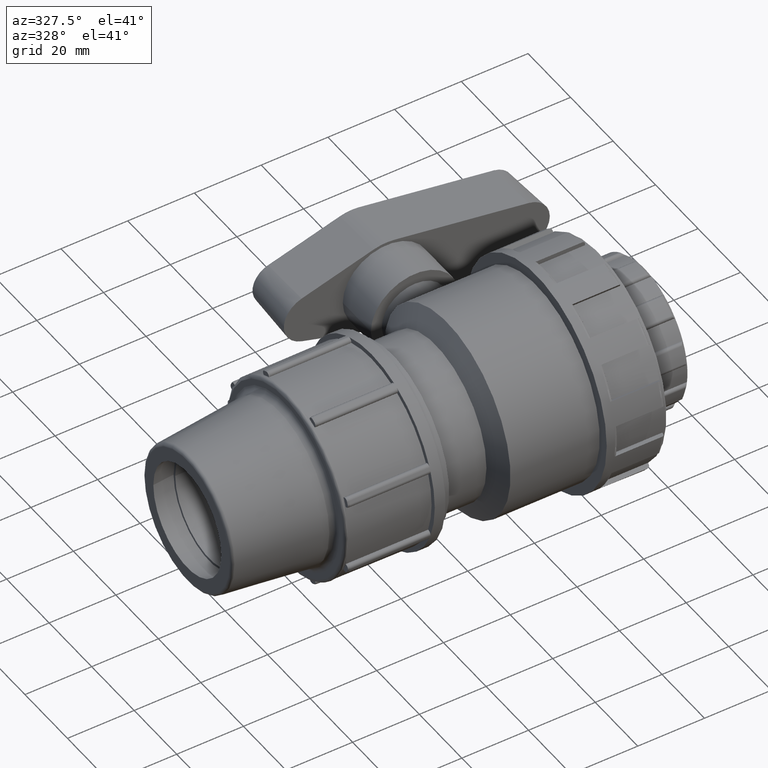
[diagram: clean part render]
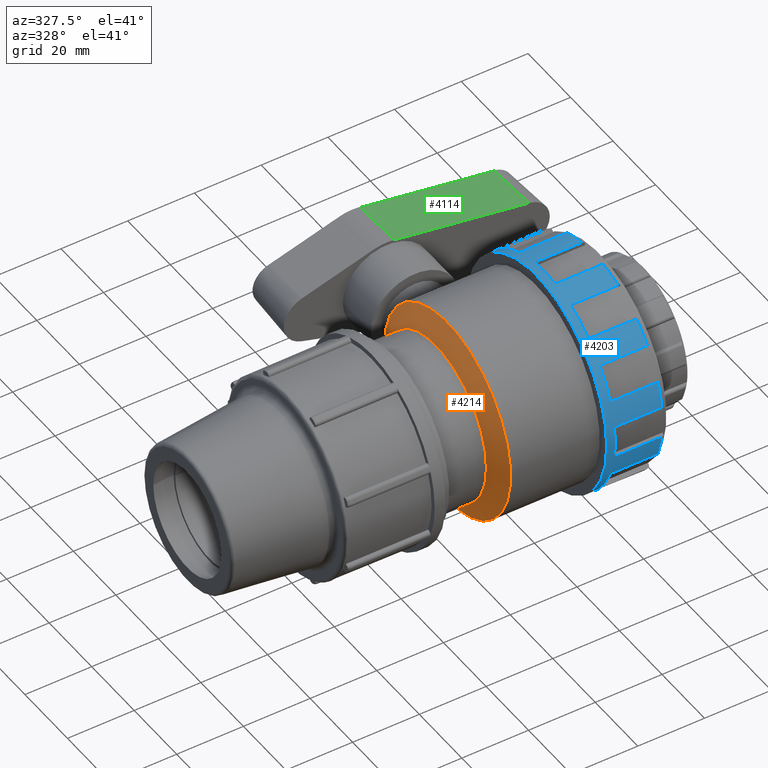
[diagram: same view with three faces highlighted in distinct colors, each labeled with its STEP entity id]
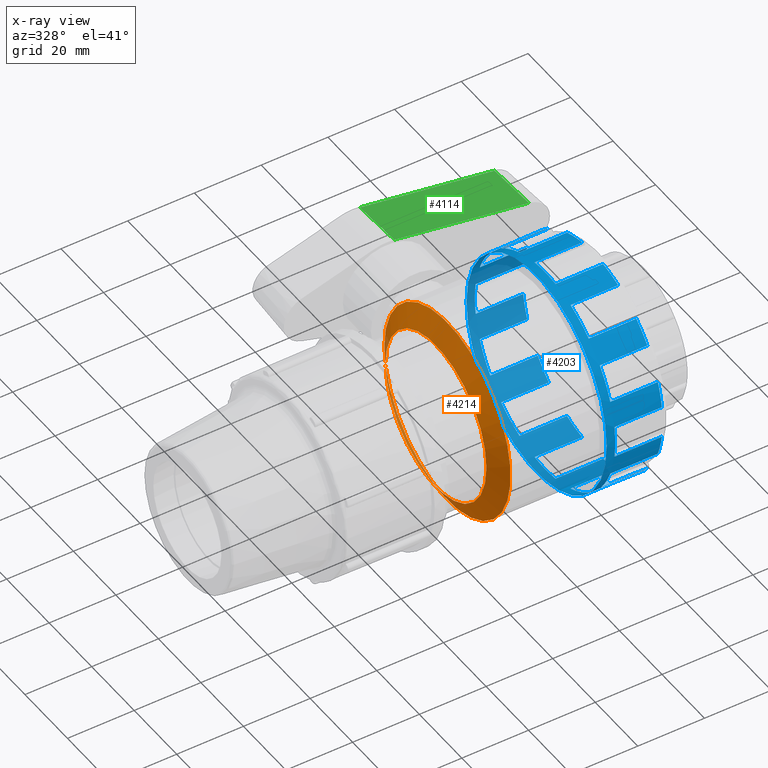
[diagram: x-ray of the same camera — body ghosted, the three highlighted faces saturated]
A machine part, auxiliary view with three faces highlighted in distinct colors.
The next image is the same camera in x-ray (body ghosted, the three faces saturated) — at least one of them is partly hidden behind the body in this view.
Their STEP definitions:

[orange] entity #4214 — the highlighted conical surface has half-angle 60 deg.
#31=CONICAL_SURFACE('',#4706,26.73,60.0000000000001);
#58=FACE_BOUND('',#867,.T.);
#594=FACE_OUTER_BOUND('',#866,.T.);
#866=EDGE_LOOP('',(#3882));
#867=EDGE_LOOP('',(#3883));
#1599=CIRCLE('',#4705,29.7);
#1600=CIRCLE('',#4707,23.76);
#2012=VERTEX_POINT('',#8598);
#2013=VERTEX_POINT('',#8601);
#2639=EDGE_CURVE('',#2012,#2012,#1599,.T.);
#2640=EDGE_CURVE('',#2013,#2013,#1600,.T.);
#3882=ORIENTED_EDGE('',*,*,#2640,.F.);
#3883=ORIENTED_EDGE('',*,*,#2639,.T.);
#4214=ADVANCED_FACE('',(#594,#58),#31,.T.);
#4705=AXIS2_PLACEMENT_3D('',#8599,#5912,#5913);
#4706=AXIS2_PLACEMENT_3D('',#8600,#5914,#5915);
#4707=AXIS2_PLACEMENT_3D('',#8602,#5916,#5917);
#5912=DIRECTION('center_axis',(-1.,0.,0.));
#5913=DIRECTION('ref_axis',(0.,0.,1.));
#5914=DIRECTION('center_axis',(1.,0.,0.));
#5915=DIRECTION('ref_axis',(0.,1.,0.));
#5916=DIRECTION('center_axis',(-1.,0.,0.));
#5917=DIRECTION('ref_axis',(0.,0.,1.));
#8598=CARTESIAN_POINT('',(-13.3666666666667,29.7,0.));
#8599=CARTESIAN_POINT('Origin',(-13.3666666666667,0.,0.));
#8600=CARTESIAN_POINT('Origin',(-15.0813969661598,0.,0.));
#8601=CARTESIAN_POINT('',(-16.796127265653,23.76,0.));
#8602=CARTESIAN_POINT('Origin',(-16.796127265653,0.,0.));

[blue] entity #4203 — the highlighted cylindrical surface (bore or boss wall) has radius 33 mm, axis along (-1, 0, 0).
#50=FACE_BOUND('',#848,.T.);
#583=FACE_OUTER_BOUND('',#847,.T.);
#847=EDGE_LOOP('',(#3714,#3715,#3716,#3717,#3718,#3719,#3720,#3721,#3722,
#3723,#3724,#3725,#3726,#3727,#3728,#3729,#3730,#3731,#3732,#3733,#3734,
#3735,#3736,#3737,#3738,#3739,#3740,#3741,#3742,#3743,#3744,#3745,#3746,
#3747,#3748,#3749,#3750,#3751,#3752,#3753,#3754,#3755,#3756,#3757,#3758,
#3759,#3760,#3761));
#848=EDGE_LOOP('',(#3762));
#1042=LINE('',#8096,#1270);
#1043=LINE('',#8110,#1271);
#1048=LINE('',#8130,#1276);
#1049=LINE('',#8144,#1277);
#1054=LINE('',#8164,#1282);
#1055=LINE('',#8178,#1283);
#1060=LINE('',#8198,#1288);
#1061=LINE('',#8212,#1289);
#1066=LINE('',#8232,#1294);
#1067=LINE('',#8246,#1295);
#1072=LINE('',#8266,#1300);
#1073=LINE('',#8280,#1301);
#1078=LINE('',#8300,#1306);
#1079=LINE('',#8314,#1307);
#1084=LINE('',#8334,#1312);
#1085=LINE('',#8348,#1313);
#1090=LINE('',#8368,#1318);
#1091=LINE('',#8382,#1319);
#1096=LINE('',#8402,#1324);
#1097=LINE('',#8416,#1325);
#1102=LINE('',#8436,#1330);
#1103=LINE('',#8450,#1331);
#1108=LINE('',#8544,#1336);
#1109=LINE('',#8547,#1337);
#1270=VECTOR('',#5640,14.25);
#1271=VECTOR('',#5643,14.25);
#1276=VECTOR('',#5650,14.25);
#1277=VECTOR('',#5653,14.25);
#1282=VECTOR('',#5660,14.25);
#1283=VECTOR('',#5663,14.25);
#1288=VECTOR('',#5670,14.25);
#1289=VECTOR('',#5673,14.25);
#1294=VECTOR('',#5680,14.25);
#1295=VECTOR('',#5683,14.25);
#1300=VECTOR('',#5690,14.25);
#1301=VECTOR('',#5693,14.25);
#1306=VECTOR('',#5700,14.25);
#1307=VECTOR('',#5703,14.25);
#1312=VECTOR('',#5710,14.25);
#1313=VECTOR('',#5713,14.25);
#1318=VECTOR('',#5720,14.25);
#1319=VECTOR('',#5723,14.25);
#1324=VECTOR('',#5730,14.25);
#1325=VECTOR('',#5733,14.25);
#1330=VECTOR('',#5740,14.25);
#1331=VECTOR('',#5743,14.25);
#1336=VECTOR('',#5870,14.25);
#1337=VECTOR('',#5873,14.25);
#1523=CIRCLE('',#4551,33.);
#1526=CIRCLE('',#4556,33.);
#1529=CIRCLE('',#4561,33.);
#1532=CIRCLE('',#4566,33.);
#1535=CIRCLE('',#4571,33.);
#1538=CIRCLE('',#4576,33.);
#1541=CIRCLE('',#4581,33.);
#1544=CIRCLE('',#4586,33.);
#1547=CIRCLE('',#4591,33.);
#1550=CIRCLE('',#4596,33.);
#1553=CIRCLE('',#4601,33.);
#1579=CIRCLE('',#4663,33.);
#1580=CIRCLE('',#4665,33.);
#1581=CIRCLE('',#4667,33.);
#1582=CIRCLE('',#4669,33.);
#1583=CIRCLE('',#4671,33.);
#1584=CIRCLE('',#4673,33.);
#1585=CIRCLE('',#4675,33.);
#1586=CIRCLE('',#4677,33.);
#1587=CIRCLE('',#4679,33.);
#1588=CIRCLE('',#4681,33.);
#1589=CIRCLE('',#4683,33.);
#1590=CIRCLE('',#4685,33.);
#1591=CIRCLE('',#4687,33.);
#1592=CIRCLE('',#4688,33.);
#1863=VERTEX_POINT('',#7718);
#1866=VERTEX_POINT('',#7732);
#1869=VERTEX_POINT('',#7751);
#1872=VERTEX_POINT('',#7765);
#1875=VERTEX_POINT('',#7784);
#1878=VERTEX_POINT('',#7798);
#1881=VERTEX_POINT('',#7817);
#1884=VERTEX_POINT('',#7831);
#1887=VERTEX_POINT('',#7850);
#1890=VERTEX_POINT('',#7864);
#1893=VERTEX_POINT('',#7883);
#1896=VERTEX_POINT('',#7897);
#1899=VERTEX_POINT('',#7916);
#1902=VERTEX_POINT('',#7930);
#1905=VERTEX_POINT('',#7949);
#1908=VERTEX_POINT('',#7963);
#1911=VERTEX_POINT('',#7982);
#1914=VERTEX_POINT('',#7996);
#1917=VERTEX_POINT('',#8015);
#1920=VERTEX_POINT('',#8029);
#1923=VERTEX_POINT('',#8048);
#1926=VERTEX_POINT('',#8062);
#1930=VERTEX_POINT('',#8082);
#1932=VERTEX_POINT('',#8098);
#1936=VERTEX_POINT('',#8116);
#1938=VERTEX_POINT('',#8132);
#1942=VERTEX_POINT('',#8150);
#1944=VERTEX_POINT('',#8166);
#1948=VERTEX_POINT('',#8184);
#1950=VERTEX_POINT('',#8200);
#1954=VERTEX_POINT('',#8218);
#1956=VERTEX_POINT('',#8234);
#1960=VERTEX_POINT('',#8252);
#1962=VERTEX_POINT('',#8268);
#1966=VERTEX_POINT('',#8286);
#1968=VERTEX_POINT('',#8302);
#1972=VERTEX_POINT('',#8320);
#1974=VERTEX_POINT('',#8336);
#1978=VERTEX_POINT('',#8354);
#1980=VERTEX_POINT('',#8370);
#1984=VERTEX_POINT('',#8388);
#1986=VERTEX_POINT('',#8404);
#1990=VERTEX_POINT('',#8422);
#1992=VERTEX_POINT('',#8438);
#1999=VERTEX_POINT('',#8497);
#2000=VERTEX_POINT('',#8528);
#2001=VERTEX_POINT('',#8543);
#2002=VERTEX_POINT('',#8545);
#2003=VERTEX_POINT('',#8548);
#2421=EDGE_CURVE('',#1866,#1863,#1523,.T.);
#2428=EDGE_CURVE('',#1872,#1869,#1526,.T.);
#2435=EDGE_CURVE('',#1878,#1875,#1529,.T.);
#2442=EDGE_CURVE('',#1884,#1881,#1532,.T.);
#2449=EDGE_CURVE('',#1890,#1887,#1535,.T.);
#2456=EDGE_CURVE('',#1896,#1893,#1538,.T.);
#2463=EDGE_CURVE('',#1902,#1899,#1541,.T.);
#2470=EDGE_CURVE('',#1908,#1905,#1544,.T.);
#2477=EDGE_CURVE('',#1914,#1911,#1547,.T.);
#2484=EDGE_CURVE('',#1920,#1917,#1550,.T.);
#2491=EDGE_CURVE('',#1926,#1923,#1553,.T.);
#2498=EDGE_CURVE('',#1930,#1863,#1042,.T.);
#2500=EDGE_CURVE('',#1866,#1932,#1043,.T.);
#2506=EDGE_CURVE('',#1936,#1869,#1048,.T.);
#2508=EDGE_CURVE('',#1872,#1938,#1049,.T.);
#2514=EDGE_CURVE('',#1942,#1875,#1054,.T.);
#2516=EDGE_CURVE('',#1878,#1944,#1055,.T.);
#2522=EDGE_CURVE('',#1948,#1881,#1060,.T.);
#2524=EDGE_CURVE('',#1884,#1950,#1061,.T.);
#2530=EDGE_CURVE('',#1954,#1887,#1066,.T.);
#2532=EDGE_CURVE('',#1890,#1956,#1067,.T.);
#2538=EDGE_CURVE('',#1960,#1893,#1072,.T.);
#2540=EDGE_CURVE('',#1896,#1962,#1073,.T.);
#2546=EDGE_CURVE('',#1966,#1899,#1078,.T.);
#2548=EDGE_CURVE('',#1902,#1968,#1079,.T.);
#2554=EDGE_CURVE('',#1972,#1905,#1084,.T.);
#2556=EDGE_CURVE('',#1908,#1974,#1085,.T.);
#2562=EDGE_CURVE('',#1978,#1911,#1090,.T.);
#2564=EDGE_CURVE('',#1914,#1980,#1091,.T.);
#2570=EDGE_CURVE('',#1984,#1917,#1096,.T.);
#2572=EDGE_CURVE('',#1920,#1986,#1097,.T.);
#2578=EDGE_CURVE('',#1990,#1923,#1102,.T.);
#2580=EDGE_CURVE('',#1926,#1992,#1103,.T.);
#2609=EDGE_CURVE('',#1990,#1999,#1579,.T.);
#2611=EDGE_CURVE('',#1984,#1992,#1580,.T.);
#2612=EDGE_CURVE('',#1978,#1986,#1581,.T.);
#2613=EDGE_CURVE('',#1972,#1980,#1582,.T.);
#2614=EDGE_CURVE('',#1966,#1974,#1583,.T.);
#2615=EDGE_CURVE('',#1960,#1968,#1584,.T.);
#2616=EDGE_CURVE('',#1954,#1962,#1585,.T.);
#2617=EDGE_CURVE('',#1948,#1956,#1586,.T.);
#2618=EDGE_CURVE('',#1942,#1950,#1587,.T.);
#2619=EDGE_CURVE('',#1936,#1944,#1588,.T.);
#2621=EDGE_CURVE('',#2000,#1932,#1589,.T.);
#2622=EDGE_CURVE('',#1930,#1938,#1590,.T.);
#2623=EDGE_CURVE('',#2000,#2001,#1108,.T.);
#2624=EDGE_CURVE('',#2002,#2001,#1591,.T.);
#2625=EDGE_CURVE('',#2002,#1999,#1109,.T.);
#2626=EDGE_CURVE('',#2003,#2003,#1592,.T.);
#3714=ORIENTED_EDGE('',*,*,#2500,.T.);
#3715=ORIENTED_EDGE('',*,*,#2621,.F.);
#3716=ORIENTED_EDGE('',*,*,#2623,.T.);
#3717=ORIENTED_EDGE('',*,*,#2624,.F.);
#3718=ORIENTED_EDGE('',*,*,#2625,.T.);
#3719=ORIENTED_EDGE('',*,*,#2609,.F.);
#3720=ORIENTED_EDGE('',*,*,#2578,.T.);
#3721=ORIENTED_EDGE('',*,*,#2491,.F.);
#3722=ORIENTED_EDGE('',*,*,#2580,.T.);
#3723=ORIENTED_EDGE('',*,*,#2611,.F.);
#3724=ORIENTED_EDGE('',*,*,#2570,.T.);
#3725=ORIENTED_EDGE('',*,*,#2484,.F.);
#3726=ORIENTED_EDGE('',*,*,#2572,.T.);
#3727=ORIENTED_EDGE('',*,*,#2612,.F.);
#3728=ORIENTED_EDGE('',*,*,#2562,.T.);
#3729=ORIENTED_EDGE('',*,*,#2477,.F.);
#3730=ORIENTED_EDGE('',*,*,#2564,.T.);
#3731=ORIENTED_EDGE('',*,*,#2613,.F.);
#3732=ORIENTED_EDGE('',*,*,#2554,.T.);
#3733=ORIENTED_EDGE('',*,*,#2470,.F.);
#3734=ORIENTED_EDGE('',*,*,#2556,.T.);
#3735=ORIENTED_EDGE('',*,*,#2614,.F.);
#3736=ORIENTED_EDGE('',*,*,#2546,.T.);
#3737=ORIENTED_EDGE('',*,*,#2463,.F.);
#3738=ORIENTED_EDGE('',*,*,#2548,.T.);
#3739=ORIENTED_EDGE('',*,*,#2615,.F.);
#3740=ORIENTED_EDGE('',*,*,#2538,.T.);
#3741=ORIENTED_EDGE('',*,*,#2456,.F.);
#3742=ORIENTED_EDGE('',*,*,#2540,.T.);
#3743=ORIENTED_EDGE('',*,*,#2616,.F.);
#3744=ORIENTED_EDGE('',*,*,#2530,.T.);
#3745=ORIENTED_EDGE('',*,*,#2449,.F.);
#3746=ORIENTED_EDGE('',*,*,#2532,.T.);
#3747=ORIENTED_EDGE('',*,*,#2617,.F.);
#3748=ORIENTED_EDGE('',*,*,#2522,.T.);
#3749=ORIENTED_EDGE('',*,*,#2442,.F.);
#3750=ORIENTED_EDGE('',*,*,#2524,.T.);
#3751=ORIENTED_EDGE('',*,*,#2618,.F.);
#3752=ORIENTED_EDGE('',*,*,#2514,.T.);
#3753=ORIENTED_EDGE('',*,*,#2435,.F.);
#3754=ORIENTED_EDGE('',*,*,#2516,.T.);
#3755=ORIENTED_EDGE('',*,*,#2619,.F.);
#3756=ORIENTED_EDGE('',*,*,#2506,.T.);
#3757=ORIENTED_EDGE('',*,*,#2428,.F.);
#3758=ORIENTED_EDGE('',*,*,#2508,.T.);
#3759=ORIENTED_EDGE('',*,*,#2622,.F.);
#3760=ORIENTED_EDGE('',*,*,#2498,.T.);
#3761=ORIENTED_EDGE('',*,*,#2421,.F.);
#3762=ORIENTED_EDGE('',*,*,#2626,.F.);
#3969=CYLINDRICAL_SURFACE('',#4686,33.);
#4203=ADVANCED_FACE('',(#583,#50),#3969,.T.);
#4551=AXIS2_PLACEMENT_3D('',#7743,#5508,#5509);
#4556=AXIS2_PLACEMENT_3D('',#7776,#5520,#5521);
#4561=AXIS2_PLACEMENT_3D('',#7809,#5532,#5533);
#4566=AXIS2_PLACEMENT_3D('',#7842,#5544,#5545);
#4571=AXIS2_PLACEMENT_3D('',#7875,#5556,#5557);
#4576=AXIS2_PLACEMENT_3D('',#7908,#5568,#5569);
#4581=AXIS2_PLACEMENT_3D('',#7941,#5580,#5581);
#4586=AXIS2_PLACEMENT_3D('',#7974,#5592,#5593);
#4591=AXIS2_PLACEMENT_3D('',#8007,#5604,#5605);
#4596=AXIS2_PLACEMENT_3D('',#8040,#5616,#5617);
#4601=AXIS2_PLACEMENT_3D('',#8073,#5628,#5629);
#4663=AXIS2_PLACEMENT_3D('',#8498,#5822,#5823);
#4665=AXIS2_PLACEMENT_3D('',#8510,#5826,#5827);
#4667=AXIS2_PLACEMENT_3D('',#8512,#5830,#5831);
#4669=AXIS2_PLACEMENT_3D('',#8514,#5834,#5835);
#4671=AXIS2_PLACEMENT_3D('',#8516,#5838,#5839);
#4673=AXIS2_PLACEMENT_3D('',#8518,#5842,#5843);
#4675=AXIS2_PLACEMENT_3D('',#8520,#5846,#5847);
#4677=AXIS2_PLACEMENT_3D('',#8522,#5850,#5851);
#4679=AXIS2_PLACEMENT_3D('',#8524,#5854,#5855);
#4681=AXIS2_PLACEMENT_3D('',#8526,#5858,#5859);
#4683=AXIS2_PLACEMENT_3D('',#8539,#5862,#5863);
#4685=AXIS2_PLACEMENT_3D('',#8541,#5866,#5867);
#4686=AXIS2_PLACEMENT_3D('',#8542,#5868,#5869);
#4687=AXIS2_PLACEMENT_3D('',#8546,#5871,#5872);
#4688=AXIS2_PLACEMENT_3D('',#8549,#5874,#5875);
#5508=DIRECTION('center_axis',(1.,0.,0.));
#5509=DIRECTION('ref_axis',(0.,-0.866025403784438,-0.5));
#5520=DIRECTION('center_axis',(1.,0.,0.));
#5521=DIRECTION('ref_axis',(0.,-0.499999999999999,-0.866025403784439));
#5532=DIRECTION('center_axis',(1.,0.,0.));
#5533=DIRECTION('ref_axis',(0.,2.83276944882399E-16,-1.));
#5544=DIRECTION('center_axis',(1.,0.,0.));
#5545=DIRECTION('ref_axis',(0.,0.500000000000001,-0.866025403784438));
#5556=DIRECTION('center_axis',(1.,0.,0.));
#5557=DIRECTION('ref_axis',(0.,0.866025403784439,-0.5));
#5568=DIRECTION('center_axis',(1.,0.,0.));
#5569=DIRECTION('ref_axis',(0.,1.,1.38777878078145E-16));
#5580=DIRECTION('center_axis',(1.,0.,0.));
#5581=DIRECTION('ref_axis',(0.,0.866025403784438,0.5));
#5592=DIRECTION('center_axis',(1.,0.,0.));
#5593=DIRECTION('ref_axis',(0.,0.5,0.866025403784439));
#5604=DIRECTION('center_axis',(1.,0.,0.));
#5605=DIRECTION('ref_axis',(0.,6.12323399573677E-17,1.));
#5616=DIRECTION('center_axis',(1.,0.,0.));
#5617=DIRECTION('ref_axis',(0.,-0.5,0.866025403784438));
#5628=DIRECTION('center_axis',(1.,0.,0.));
#5629=DIRECTION('ref_axis',(0.,-0.866025403784439,0.5));
#5640=DIRECTION('',(-1.,0.,0.));
#5643=DIRECTION('',(1.,0.,0.));
#5650=DIRECTION('',(-1.,0.,0.));
#5653=DIRECTION('',(1.,0.,0.));
#5660=DIRECTION('',(-1.,0.,0.));
#5663=DIRECTION('',(1.,0.,0.));
#5670=DIRECTION('',(-1.,0.,0.));
#5673=DIRECTION('',(1.,0.,0.));
#5680=DIRECTION('',(-1.,0.,0.));
#5683=DIRECTION('',(1.,0.,0.));
#5690=DIRECTION('',(-1.,0.,0.));
#5693=DIRECTION('',(1.,0.,0.));
#5700=DIRECTION('',(-1.,0.,0.));
#5703=DIRECTION('',(1.,0.,0.));
#5710=DIRECTION('',(-1.,0.,0.));
#5713=DIRECTION('',(1.,0.,0.));
#5720=DIRECTION('',(-1.,0.,0.));
#5723=DIRECTION('',(1.,0.,0.));
#5730=DIRECTION('',(-1.,0.,0.));
#5733=DIRECTION('',(1.,0.,0.));
#5740=DIRECTION('',(-1.,0.,0.));
#5743=DIRECTION('',(1.,0.,0.));
#5822=DIRECTION('center_axis',(1.,0.,0.));
#5823=DIRECTION('ref_axis',(0.,-1.,-1.83697019872103E-16));
#5826=DIRECTION('center_axis',(1.,0.,0.));
#5827=DIRECTION('ref_axis',(0.,-1.,-1.83697019872103E-16));
#5830=DIRECTION('center_axis',(1.,0.,0.));
#5831=DIRECTION('ref_axis',(0.,-1.,-1.83697019872103E-16));
#5834=DIRECTION('center_axis',(1.,0.,0.));
#5835=DIRECTION('ref_axis',(0.,-1.,-1.83697019872103E-16));
#5838=DIRECTION('center_axis',(1.,0.,0.));
#5839=DIRECTION('ref_axis',(0.,-1.,-1.83697019872103E-16));
#5842=DIRECTION('center_axis',(1.,0.,0.));
#5843=DIRECTION('ref_axis',(0.,-1.,-1.83697019872103E-16));
#5846=DIRECTION('center_axis',(1.,0.,0.));
#5847=DIRECTION('ref_axis',(0.,-1.,-1.83697019872103E-16));
#5850=DIRECTION('center_axis',(1.,0.,0.));
#5851=DIRECTION('ref_axis',(0.,-1.,-1.83697019872103E-16));
#5854=DIRECTION('center_axis',(1.,0.,0.));
#5855=DIRECTION('ref_axis',(0.,-1.,-1.83697019872103E-16));
#5858=DIRECTION('center_axis',(1.,0.,0.));
#5859=DIRECTION('ref_axis',(0.,-1.,-1.83697019872103E-16));
#5862=DIRECTION('center_axis',(1.,0.,0.));
#5863=DIRECTION('ref_axis',(0.,-1.,-1.83697019872103E-16));
#5866=DIRECTION('center_axis',(1.,0.,0.));
#5867=DIRECTION('ref_axis',(0.,-1.,-1.83697019872103E-16));
#5868=DIRECTION('center_axis',(-1.,0.,0.));
#5869=DIRECTION('ref_axis',(0.,1.,0.));
#5870=DIRECTION('',(-1.,0.,0.));
#5871=DIRECTION('center_axis',(1.,0.,0.));
#5872=DIRECTION('ref_axis',(0.,-1.,-1.22464679914735E-16));
#5873=DIRECTION('',(1.,0.,0.));
#5874=DIRECTION('center_axis',(-1.,0.,0.));
#5875=DIRECTION('ref_axis',(0.,0.,1.));
#7718=CARTESIAN_POINT('',(15.8879366666667,-25.7804972527471,-20.6001446936933));
#7732=CARTESIAN_POINT('',(15.8879366666667,-30.7304972527471,-12.0264931962273));
#7743=CARTESIAN_POINT('Origin',(15.8879366666667,0.,0.));
#7751=CARTESIAN_POINT('',(15.8879366666667,-12.0264931962273,-30.7304972527471));
#7765=CARTESIAN_POINT('',(15.8879366666667,-20.6001446936932,-25.7804972527471));
#7776=CARTESIAN_POINT('Origin',(15.8879366666667,0.,0.));
#7784=CARTESIAN_POINT('',(15.8879366666667,4.95000000000001,-32.6266378899206));
#7798=CARTESIAN_POINT('',(15.8879366666667,-4.94999999999999,-32.6266378899206));
#7809=CARTESIAN_POINT('Origin',(15.8879366666667,0.,0.));
#7817=CARTESIAN_POINT('',(15.8879366666667,20.6001446936933,-25.7804972527471));
#7831=CARTESIAN_POINT('',(15.8879366666667,12.0264931962273,-30.7304972527471));
#7842=CARTESIAN_POINT('Origin',(15.8879366666667,0.,0.));
#7850=CARTESIAN_POINT('',(15.8879366666667,30.7304972527471,-12.0264931962273));
#7864=CARTESIAN_POINT('',(15.8879366666667,25.7804972527471,-20.6001446936932));
#7875=CARTESIAN_POINT('Origin',(15.8879366666667,0.,0.));
#7883=CARTESIAN_POINT('',(15.8879366666667,32.6266378899206,4.95000000000001));
#7897=CARTESIAN_POINT('',(15.8879366666667,32.6266378899206,-4.94999999999999));
#7908=CARTESIAN_POINT('Origin',(15.8879366666667,0.,0.));
#7916=CARTESIAN_POINT('',(15.8879366666667,25.7804972527471,20.6001446936933));
#7930=CARTESIAN_POINT('',(15.8879366666667,30.7304972527471,12.0264931962273));
#7941=CARTESIAN_POINT('Origin',(15.8879366666667,0.,0.));
#7949=CARTESIAN_POINT('',(15.8879366666667,12.0264931962273,30.7304972527471));
#7963=CARTESIAN_POINT('',(15.8879366666667,20.6001446936932,25.7804972527471));
#7974=CARTESIAN_POINT('Origin',(15.8879366666667,0.,0.));
#7982=CARTESIAN_POINT('',(15.8879366666667,-4.95,32.6266378899206));
#7996=CARTESIAN_POINT('',(15.8879366666667,4.95,32.6266378899206));
#8007=CARTESIAN_POINT('Origin',(15.8879366666667,0.,0.));
#8015=CARTESIAN_POINT('',(15.8879366666667,-20.6001446936933,25.7804972527471));
#8029=CARTESIAN_POINT('',(15.8879366666667,-12.0264931962273,30.7304972527471));
#8040=CARTESIAN_POINT('Origin',(15.8879366666667,0.,0.));
#8048=CARTESIAN_POINT('',(15.8879366666667,-30.7304972527471,12.0264931962273));
#8062=CARTESIAN_POINT('',(15.8879366666667,-25.7804972527471,20.6001446936932));
#8073=CARTESIAN_POINT('Origin',(15.8879366666667,0.,0.));
#8082=CARTESIAN_POINT('',(30.1379366666667,-25.7804972527471,-20.6001446936933));
#8096=CARTESIAN_POINT('',(22.2066666666667,-25.7804972527471,-20.6001446936933));
#8098=CARTESIAN_POINT('',(30.1379366666667,-30.7304972527471,-12.0264931962273));
#8110=CARTESIAN_POINT('',(22.2066666666667,-30.7304972527471,-12.0264931962273));
#8116=CARTESIAN_POINT('',(30.1379366666667,-12.0264931962273,-30.7304972527471));
#8130=CARTESIAN_POINT('',(22.2066666666667,-12.0264931962273,-30.7304972527471));
#8132=CARTESIAN_POINT('',(30.1379366666667,-20.6001446936932,-25.7804972527471));
#8144=CARTESIAN_POINT('',(22.2066666666667,-20.6001446936932,-25.7804972527471));
#8150=CARTESIAN_POINT('',(30.1379366666667,4.95000000000001,-32.6266378899206));
#8164=CARTESIAN_POINT('',(22.2066666666667,4.95000000000001,-32.6266378899206));
#8166=CARTESIAN_POINT('',(30.1379366666667,-4.94999999999999,-32.6266378899206));
#8178=CARTESIAN_POINT('',(22.2066666666667,-4.94999999999999,-32.6266378899206));
#8184=CARTESIAN_POINT('',(30.1379366666667,20.6001446936933,-25.7804972527471));
#8198=CARTESIAN_POINT('',(22.2066666666667,20.6001446936933,-25.7804972527471));
#8200=CARTESIAN_POINT('',(30.1379366666667,12.0264931962273,-30.7304972527471));
#8212=CARTESIAN_POINT('',(22.2066666666667,12.0264931962273,-30.7304972527471));
#8218=CARTESIAN_POINT('',(30.1379366666667,30.7304972527471,-12.0264931962273));
#8232=CARTESIAN_POINT('',(22.2066666666667,30.7304972527471,-12.0264931962273));
#8234=CARTESIAN_POINT('',(30.1379366666667,25.7804972527471,-20.6001446936932));
#8246=CARTESIAN_POINT('',(22.2066666666667,25.7804972527471,-20.6001446936932));
#8252=CARTESIAN_POINT('',(30.1379366666667,32.6266378899206,4.95000000000001));
#8266=CARTESIAN_POINT('',(22.2066666666667,32.6266378899206,4.95000000000001));
#8268=CARTESIAN_POINT('',(30.1379366666667,32.6266378899206,-4.94999999999999));
#8280=CARTESIAN_POINT('',(22.2066666666667,32.6266378899206,-4.94999999999999));
#8286=CARTESIAN_POINT('',(30.1379366666667,25.7804972527471,20.6001446936933));
#8300=CARTESIAN_POINT('',(22.2066666666667,25.7804972527471,20.6001446936933));
#8302=CARTESIAN_POINT('',(30.1379366666667,30.7304972527471,12.0264931962273));
#8314=CARTESIAN_POINT('',(22.2066666666667,30.7304972527471,12.0264931962273));
#8320=CARTESIAN_POINT('',(30.1379366666667,12.0264931962273,30.7304972527471));
#8334=CARTESIAN_POINT('',(22.2066666666667,12.0264931962273,30.7304972527471));
#8336=CARTESIAN_POINT('',(30.1379366666667,20.6001446936932,25.7804972527471));
#8348=CARTESIAN_POINT('',(22.2066666666667,20.6001446936932,25.7804972527471));
#8354=CARTESIAN_POINT('',(30.1379366666667,-4.95,32.6266378899206));
#8368=CARTESIAN_POINT('',(22.2066666666667,-4.95,32.6266378899206));
#8370=CARTESIAN_POINT('',(30.1379366666667,4.95,32.6266378899206));
#8382=CARTESIAN_POINT('',(22.2066666666667,4.95,32.6266378899206));
#8388=CARTESIAN_POINT('',(30.1379366666667,-20.6001446936933,25.7804972527471));
#8402=CARTESIAN_POINT('',(22.2066666666667,-20.6001446936933,25.7804972527471));
#8404=CARTESIAN_POINT('',(30.1379366666667,-12.0264931962273,30.7304972527471));
#8416=CARTESIAN_POINT('',(22.2066666666667,-12.0264931962273,30.7304972527471));
#8422=CARTESIAN_POINT('',(30.1379366666667,-30.7304972527471,12.0264931962273));
#8436=CARTESIAN_POINT('',(22.2066666666667,-30.7304972527471,12.0264931962273));
#8438=CARTESIAN_POINT('',(30.1379366666667,-25.7804972527471,20.6001446936932));
#8450=CARTESIAN_POINT('',(22.2066666666667,-25.7804972527471,20.6001446936932));
#8497=CARTESIAN_POINT('',(30.1379366666667,-32.6266378899206,4.95));
#8498=CARTESIAN_POINT('Origin',(30.1379366666667,0.,0.));
#8510=CARTESIAN_POINT('Origin',(30.1379366666667,0.,0.));
#8512=CARTESIAN_POINT('Origin',(30.1379366666667,0.,0.));
#8514=CARTESIAN_POINT('Origin',(30.1379366666667,0.,0.));
#8516=CARTESIAN_POINT('Origin',(30.1379366666667,0.,0.));
#8518=CARTESIAN_POINT('Origin',(30.1379366666667,0.,0.));
#8520=CARTESIAN_POINT('Origin',(30.1379366666667,0.,0.));
#8522=CARTESIAN_POINT('Origin',(30.1379366666667,0.,0.));
#8524=CARTESIAN_POINT('Origin',(30.1379366666667,0.,0.));
#8526=CARTESIAN_POINT('Origin',(30.1379366666667,0.,0.));
#8528=CARTESIAN_POINT('',(30.1379366666667,-32.6266378899206,-4.95));
#8539=CARTESIAN_POINT('Origin',(30.1379366666667,0.,0.));
#8541=CARTESIAN_POINT('Origin',(30.1379366666667,0.,0.));
#8542=CARTESIAN_POINT('Origin',(22.2066666666667,0.,0.));
#8543=CARTESIAN_POINT('',(15.8879366666667,-32.6266378899206,-4.95));
#8544=CARTESIAN_POINT('',(22.2066666666667,-32.6266378899206,-4.95));
#8545=CARTESIAN_POINT('',(15.8879366666667,-32.6266378899206,4.95));
#8546=CARTESIAN_POINT('Origin',(15.8879366666667,0.,0.));
#8547=CARTESIAN_POINT('',(22.2066666666667,-32.6266378899206,4.95));
#8548=CARTESIAN_POINT('',(13.3666666666667,33.,0.));
#8549=CARTESIAN_POINT('Origin',(13.3666666666667,0.,0.));

[green] entity #4114 — the highlighted planar face has unit normal (0.1592, 0.0523, 0.9859).
#143=PLANE('',#4512);
#494=FACE_OUTER_BOUND('',#750,.T.);
#750=EDGE_LOOP('',(#3294,#3295,#3296,#3297));
#988=LINE('',#7551,#1216);
#1000=LINE('',#7606,#1228);
#1001=LINE('',#7610,#1229);
#1002=LINE('',#7611,#1230);
#1216=VECTOR('',#5346,40.8705272782233);
#1228=VECTOR('',#5410,15.9477419951585);
#1229=VECTOR('',#5415,15.9477419951585);
#1230=VECTOR('',#5416,40.8705272782234);
#1823=VERTEX_POINT('',#7548);
#1824=VERTEX_POINT('',#7550);
#1841=VERTEX_POINT('',#7605);
#1842=VERTEX_POINT('',#7609);
#2354=EDGE_CURVE('',#1823,#1824,#988,.T.);
#2382=EDGE_CURVE('',#1824,#1841,#1000,.T.);
#2384=EDGE_CURVE('',#1823,#1842,#1001,.T.);
#2385=EDGE_CURVE('',#1842,#1841,#1002,.T.);
#3294=ORIENTED_EDGE('',*,*,#2354,.F.);
#3295=ORIENTED_EDGE('',*,*,#2384,.T.);
#3296=ORIENTED_EDGE('',*,*,#2385,.T.);
#3297=ORIENTED_EDGE('',*,*,#2382,.F.);
#4114=ADVANCED_FACE('',(#494),#143,.T.);
#4512=AXIS2_PLACEMENT_3D('',#7608,#5413,#5414);
#5346=DIRECTION('',(0.98721080382182,2.95225364191702E-16,-0.159420289855073));
#5410=DIRECTION('',(0.00834341331409302,-0.998629534754574,0.0516666214313803));
#5413=DIRECTION('center_axis',(0.159201809888411,0.052335956242944,0.985857865725273));
#5414=DIRECTION('ref_axis',(-0.98721080382182,0.,0.159420289855073));
#5415=DIRECTION('',(0.00834341331409283,-0.998629534754574,0.0516666214313803));
#5416=DIRECTION('',(0.98721080382182,2.95225364191702E-16,-0.159420289855073));
#7548=CARTESIAN_POINT('',(2.10914446870023,65.4258861690111,13.0608858396556));
#7550=CARTESIAN_POINT('',(42.4569705556567,65.4258861690111,6.54529453443155));
#7551=CARTESIAN_POINT('',(2.10914446870023,65.4258861690111,13.0608858396556));
#7605=CARTESIAN_POINT('',(42.5900291585489,49.5,7.36926048278073));
#7606=CARTESIAN_POINT('',(42.4521739130435,66.,6.51559130522402));
#7608=CARTESIAN_POINT('Origin',(2.10434782608695,66.,13.031182610448));
#7609=CARTESIAN_POINT('',(2.24220307159235,49.5,13.8848517880048));
#7610=CARTESIAN_POINT('',(2.10434782608695,66.,13.031182610448));
#7611=CARTESIAN_POINT('',(2.24220307159235,49.5,13.8848517880048));